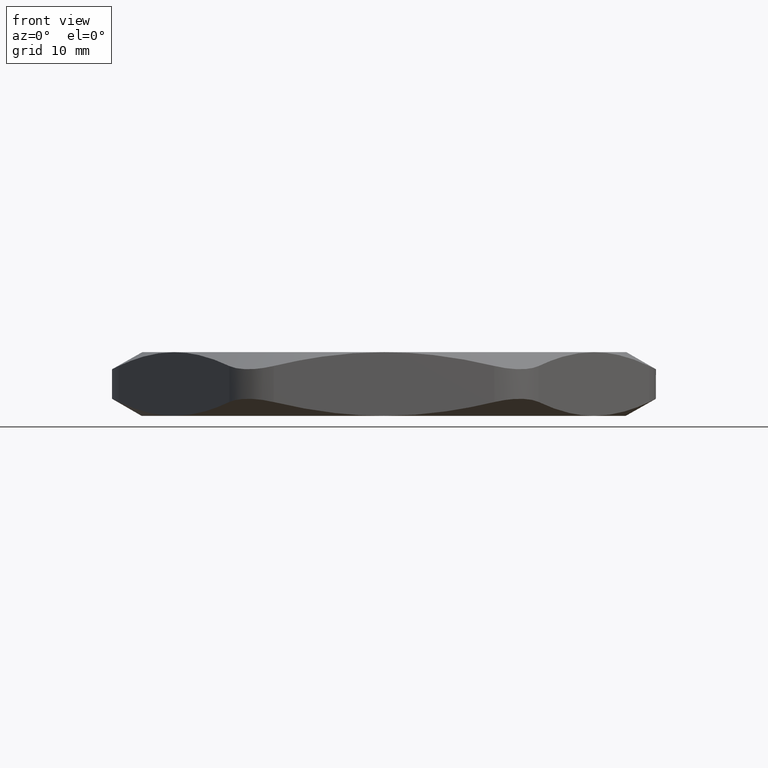
[diagram: clean part render]
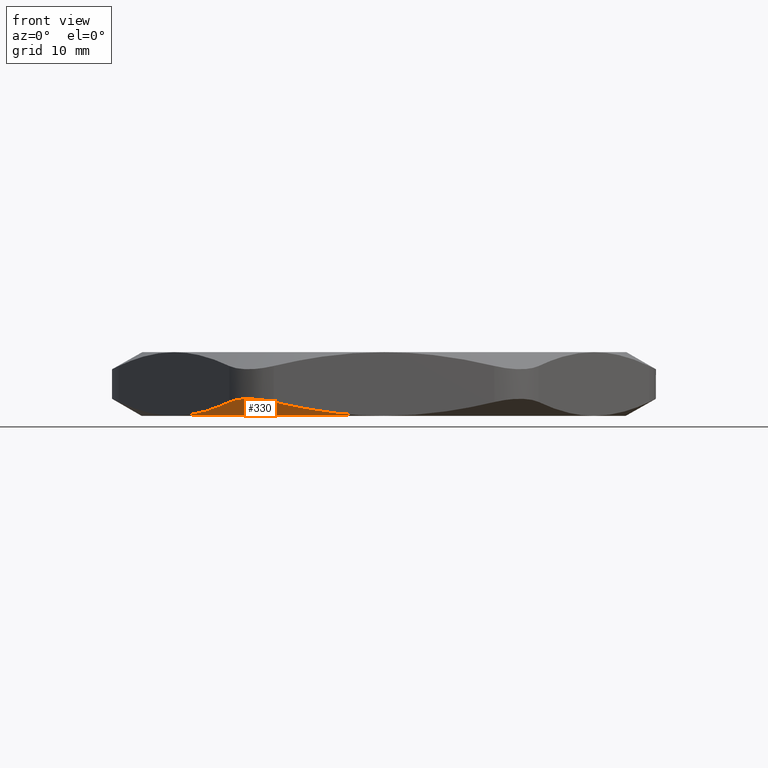
[diagram: same view with one face highlighted and labeled with its STEP entity id]
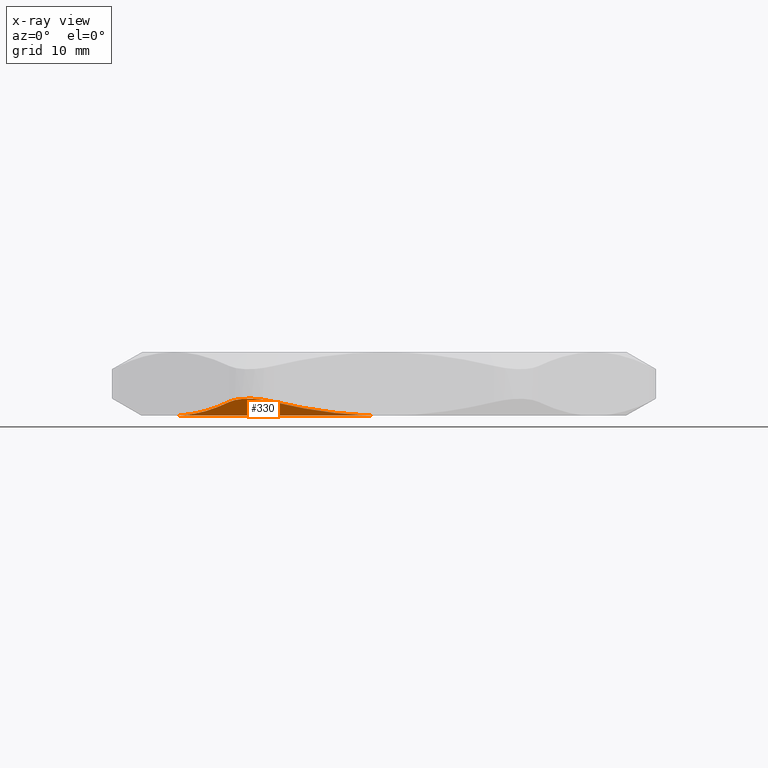
[diagram: x-ray of the same camera — body ghosted, the highlighted face saturated]
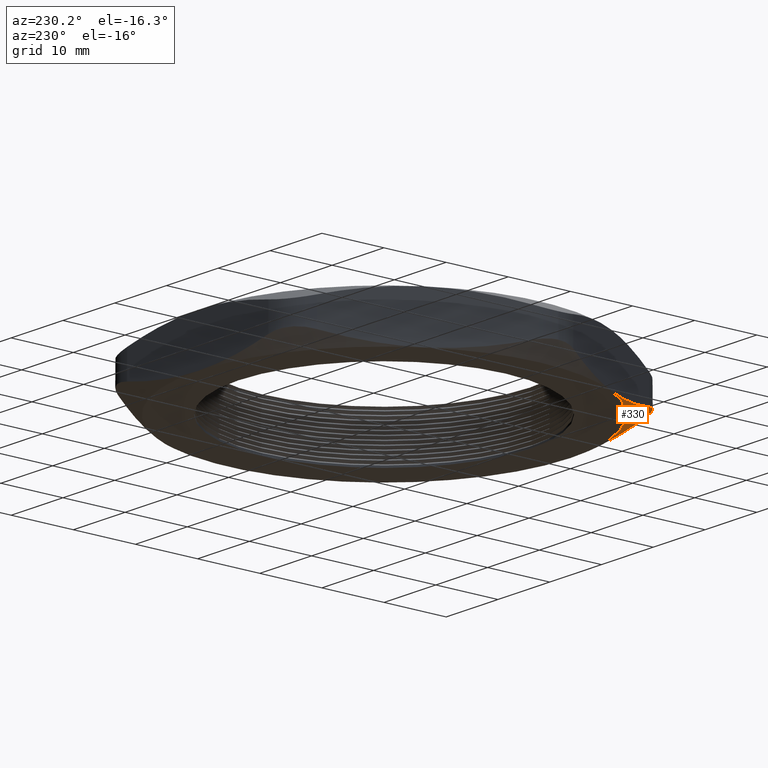
[diagram: same view with one face highlighted and labeled with its STEP entity id]
A machine part, front view. The second image highlights one B-rep face of the part: STEP entity #330.
The next image is the same camera in x-ray: the body ghosted, the highlighted face saturated — about 0% of this face is hidden behind the body in this view.
A second angle (auxiliary view) of the same face is appended — the face is thin or edge-on in the first view.
In plain terms, the highlighted conical surface has half-angle 60 deg.
Its self-contained STEP definition (entity closure, byte-faithful):
#55 = EDGE_CURVE ( 'NONE', #236, #129, #728, .T. ) ;
#68 = ORIENTED_EDGE ( 'NONE', *, *, #128, .T. ) ;
#125 = VERTEX_POINT ( 'NONE', #877 ) ;
#128 = EDGE_CURVE ( 'NONE', #125, #129, #920, .T. ) ;
#129 = VERTEX_POINT ( 'NONE', #921 ) ;
#133 = VERTEX_POINT ( 'NONE', #905 ) ;
#135 = EDGE_CURVE ( 'NONE', #236, #133, #903, .T. ) ;
#236 = VERTEX_POINT ( 'NONE', #1148 ) ;
#327 = ORIENTED_EDGE ( 'NONE', *, *, #135, .T. ) ;
#329 = EDGE_LOOP ( 'NONE', ( #327, #398, #68, #2938 ) ) ;
#330 = ADVANCED_FACE ( 'NONE', ( #1373 ), #1368, .T. ) ;
#398 = ORIENTED_EDGE ( 'NONE', *, *, #399, .T. ) ;
#399 = EDGE_CURVE ( 'NONE', #133, #125, #1508, .T. ) ;
#724 = DIRECTION ( 'NONE',  ( -1.000000000000000000, 0.0000000000000000000, 0.0000000000000000000 ) ) ;
#725 = DIRECTION ( 'NONE',  ( 0.0000000000000000000, 0.0000000000000000000, -1.000000000000000000 ) ) ;
#726 = CARTESIAN_POINT ( 'NONE',  ( 0.0000000000000000000, 0.0000000000000000000, 0.0000000000000000000 ) ) ;
#727 = AXIS2_PLACEMENT_3D ( 'NONE', #726, #725, #724 ) ;
#728 = CIRCLE ( 'NONE', #727, 1.179999999999999700 ) ;
#877 = CARTESIAN_POINT ( 'NONE',  ( -0.7534421012924625800, -1.054999999999999500, 0.06721404586569541800 ) ) ;
#903 = B_SPLINE_CURVE_WITH_KNOTS ( 'NONE', 3,
 ( #953, #952, #951, #950, #949, #948 ),
 .UNSPECIFIED., .F., .F.,
 ( 4, 2, 4 ),
 ( 0.09629130399386136300, 0.1031685698336616300, 0.1100458356734618900 ),
 .UNSPECIFIED. ) ;
#905 = CARTESIAN_POINT ( 'NONE',  ( -0.5369357503463528800, -1.179999999999999700, 0.06721404586569536300 ) ) ;
#913 = CARTESIAN_POINT ( 'NONE',  ( -1.021909976465637600, -0.5899999999999994100, 0.0000000000000000000 ) ) ;
#914 = CARTESIAN_POINT ( 'NONE',  ( -0.9763607710639469200, -0.6688935380001200800, 3.150695781755365900E-016 ) ) ;
#915 = CARTESIAN_POINT ( 'NONE',  ( -0.9312536539912960000, -0.7470213565529083600, 0.006155447746287343200 ) ) ;
#916 = CARTESIAN_POINT ( 'NONE',  ( -0.8418140550371725500, -0.9019352861500353800, 0.02925203046129742900 ) ) ;
#917 = CARTESIAN_POINT ( 'NONE',  ( -0.7974787547506390100, -0.9787262788151336300, 0.04615392317019752900 ) ) ;
#918 = CARTESIAN_POINT ( 'NONE',  ( -0.7534421012924625800, -1.054999999999999500, 0.06721404586569541800 ) ) ;
#920 = B_SPLINE_CURVE_WITH_KNOTS ( 'NONE', 3,
 ( #918, #917, #916, #915, #914, #913 ),
 .UNSPECIFIED., .F., .F.,
 ( 4, 2, 4 ),
 ( 0.003767047510153078600, 0.01063822244227694700, 0.01750939737440081500 ),
 .UNSPECIFIED. ) ;
#921 = CARTESIAN_POINT ( 'NONE',  ( -1.021909976465637600, -0.5899999999999994100, 0.0000000000000000000 ) ) ;
#948 = CARTESIAN_POINT ( 'NONE',  ( -0.5369357503463528800, -1.179999999999999700, 0.06721404586569536300 ) ) ;
#949 = CARTESIAN_POINT ( 'NONE',  ( -0.4483414298501932100, -1.179999999999999700, 0.04602933820454875600 ) ) ;
#950 = CARTESIAN_POINT ( 'NONE',  ( -0.3592866603776257400, -1.179999999999999500, 0.02909769553479347000 ) ) ;
#951 = CARTESIAN_POINT ( 'NONE',  ( -0.1803601917602110100, -1.179999999999999700, 0.006070318766113876200 ) ) ;
#952 = CARTESIAN_POINT ( 'NONE',  ( -0.09043671930198121700, -1.179999999999999300, -7.143088870152403800E-017 ) ) ;
#953 = CARTESIAN_POINT ( 'NONE',  ( 0.0000000000000000000, -1.179999999999999900, 0.0000000000000000000 ) ) ;
#1148 = CARTESIAN_POINT ( 'NONE',  ( 0.0000000000000000000, -1.179999999999999900, 0.0000000000000000000 ) ) ;
#1364 = DIRECTION ( 'NONE',  ( -1.000000000000000000, 0.0000000000000000000, 0.0000000000000000000 ) ) ;
#1365 = DIRECTION ( 'NONE',  ( 0.0000000000000000000, 0.0000000000000000000, 1.000000000000000000 ) ) ;
#1366 = CARTESIAN_POINT ( 'NONE',  ( 0.0000000000000000000, 0.0000000000000000000, 0.0000000000000000000 ) ) ;
#1367 = AXIS2_PLACEMENT_3D ( 'NONE', #1366, #1365, #1364 ) ;
#1368 = CONICAL_SURFACE ( 'NONE', #1367, 1.179999999999999900, 1.047197551196600100 ) ;
#1373 = FACE_OUTER_BOUND ( 'NONE', #329, .T. ) ;
#1508 = B_SPLINE_CURVE_WITH_KNOTS ( 'NONE', 3,
 ( #1573, #1572, #1571, #1570, #1569, #1568, #1567, #1566, #1565, #1564, #1563, #1562, #1561, #1560 ),
 .UNSPECIFIED., .F., .F.,
 ( 4, 2, 2, 2, 2, 2, 4 ),
 ( 1.788112030672749000E-018, 0.001669271586080334600, 0.002503907379120499800, 0.003338543172160664400, 0.004173178965200829500, 0.005007814758240994500, 0.006677086344321324500 ),
 .UNSPECIFIED. ) ;
#1560 = CARTESIAN_POINT ( 'NONE',  ( -0.7534421012924625800, -1.054999999999999500, 0.06721404586569541800 ) ) ;
#1561 = CARTESIAN_POINT ( 'NONE',  ( -0.7426406280276912600, -1.073708700491181800, 0.07237975066804365500 ) ) ;
#1562 = CARTESIAN_POINT ( 'NONE',  ( -0.7292618027920850800, -1.091195033875053600, 0.07637160150552677100 ) ) ;
#1563 = CARTESIAN_POINT ( 'NONE',  ( -0.7062144216875255700, -1.114290582444686700, 0.08036293289793411400 ) ) ;
#1564 = CARTESIAN_POINT ( 'NONE',  ( -0.6980114634144952700, -1.121510473299437400, 0.08137240177445226300 ) ) ;
#1565 = CARTESIAN_POINT ( 'NONE',  ( -0.6805205885013945200, -1.134951313671748800, 0.08272984357175639000 ) ) ;
#1566 = CARTESIAN_POINT ( 'NONE',  ( -0.6712656668977323700, -1.141129690300331200, 0.08306829295617829100 ) ) ;
#1567 = CARTESIAN_POINT ( 'NONE',  ( -0.6522617552205266500, -1.152081483259582700, 0.08306013245854944300 ) ) ;
#1568 = CARTESIAN_POINT ( 'NONE',  ( -0.6424447765496065200, -1.156909620522816700, 0.08271979029129204700 ) ) ;
#1569 = CARTESIAN_POINT ( 'NONE',  ( -0.6221819559806121000, -1.165272639550647900, 0.08136507564973552400 ) ) ;
#1570 = CARTESIAN_POINT ( 'NONE',  ( -0.6116474606707514900, -1.168826090778308800, 0.08033741714334227700 ) ) ;
#1571 = CARTESIAN_POINT ( 'NONE',  ( -0.5799181923317222600, -1.177247800526430200, 0.07630181465680814500 ) ) ;
#1572 = CARTESIAN_POINT ( 'NONE',  ( -0.5585335758802331100, -1.179999999999999000, 0.07237852613360987200 ) ) ;
#1573 = CARTESIAN_POINT ( 'NONE',  ( -0.5369357503463528800, -1.179999999999999700, 0.06721404586569536300 ) ) ;
#2938 = ORIENTED_EDGE ( 'NONE', *, *, #55, .F. ) ;